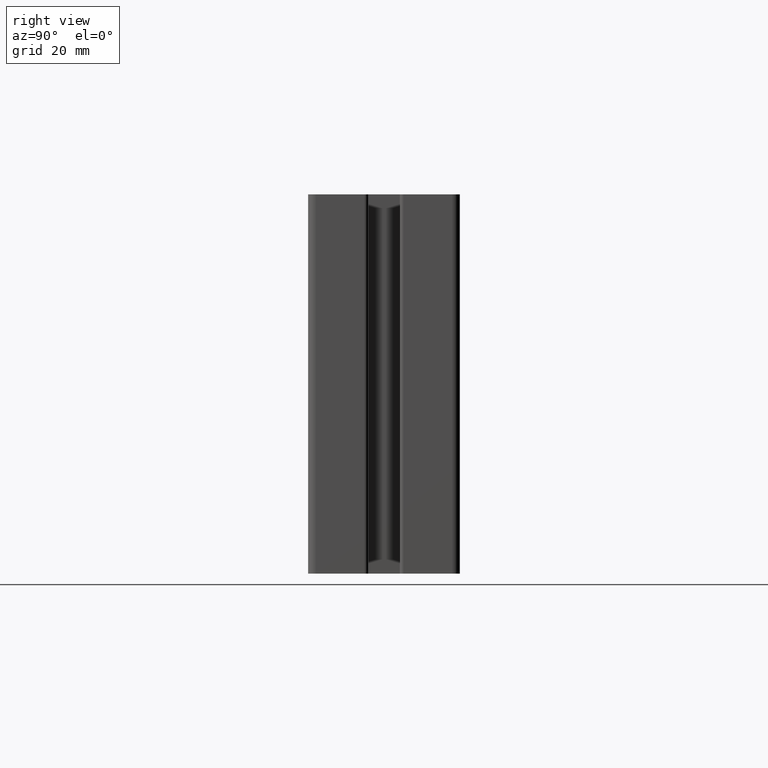
[diagram: clean part render]
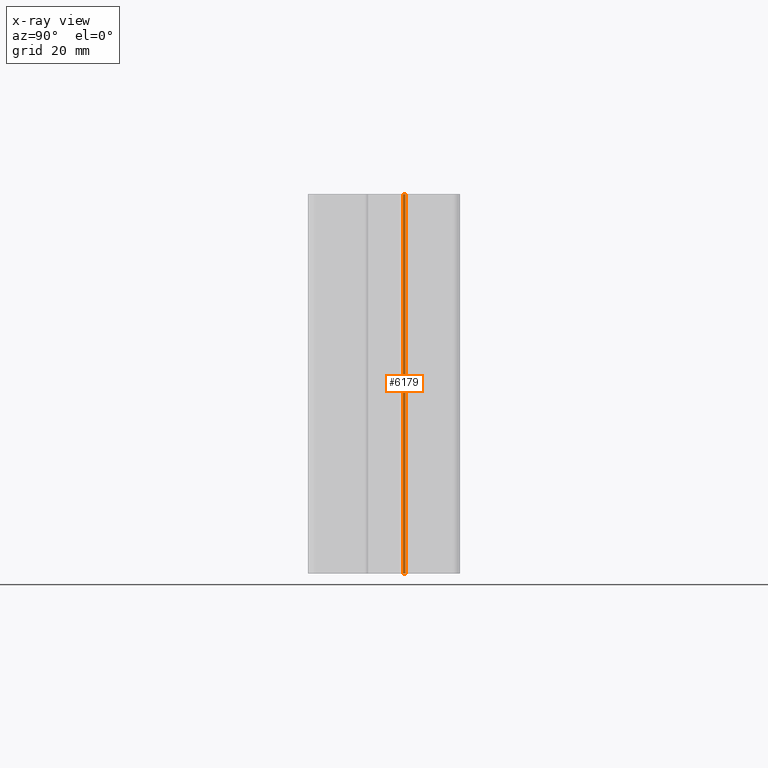
[diagram: x-ray — body ghosted, one internal face saturated and labeled with its STEP entity id]
A machine part, right view, then the same camera in x-ray: the body is ghosted and one INTERNAL B-rep face — a face not visible from any outside direction — is saturated and labeled: STEP entity #6179.
In plain terms, the highlighted cylindrical surface (edge-blend (fillet) strip) has radius 1 mm, axis along (0, 0, 1).
Its self-contained STEP definition (entity closure, byte-faithful):
#237=FACE_OUTER_BOUND('',#559,.T.);
#559=EDGE_LOOP('',(#4177,#4178,#4179,#4180));
#936=LINE('',#9163,#1580);
#938=LINE('',#9169,#1582);
#1580=VECTOR('',#7248,100.);
#1582=VECTOR('',#7254,100.);
#2203=CIRCLE('',#6526,1.);
#2204=CIRCLE('',#6527,1.);
#2537=VERTEX_POINT('',#9160);
#2538=VERTEX_POINT('',#9162);
#2539=VERTEX_POINT('',#9166);
#2540=VERTEX_POINT('',#9168);
#3198=EDGE_CURVE('',#2537,#2538,#936,.T.);
#3200=EDGE_CURVE('',#2539,#2537,#2203,.T.);
#3201=EDGE_CURVE('',#2539,#2540,#938,.T.);
#3202=EDGE_CURVE('',#2538,#2540,#2204,.T.);
#4177=ORIENTED_EDGE('',*,*,#3200,.F.);
#4178=ORIENTED_EDGE('',*,*,#3201,.T.);
#4179=ORIENTED_EDGE('',*,*,#3202,.F.);
#4180=ORIENTED_EDGE('',*,*,#3198,.F.);
#6012=CYLINDRICAL_SURFACE('',#6525,1.);
#6179=ADVANCED_FACE('',(#237),#6012,.F.);
#6525=AXIS2_PLACEMENT_3D('',#9165,#7250,#7251);
#6526=AXIS2_PLACEMENT_3D('',#9167,#7252,#7253);
#6527=AXIS2_PLACEMENT_3D('',#9170,#7255,#7256);
#7248=DIRECTION('',(0.,0.,1.));
#7250=DIRECTION('center_axis',(0.,0.,1.));
#7251=DIRECTION('ref_axis',(-0.707106781186546,0.707106781186549,0.));
#7252=DIRECTION('center_axis',(0.,0.,1.));
#7253=DIRECTION('ref_axis',(-0.707106781186546,0.707106781186549,0.));
#7254=DIRECTION('',(0.,0.,1.));
#7255=DIRECTION('center_axis',(0.,0.,-1.));
#7256=DIRECTION('ref_axis',(-0.707106781186546,0.707106781186549,0.));
#9160=CARTESIAN_POINT('',(-53.5,5.0077864376269,0.));
#9162=CARTESIAN_POINT('',(-53.5,5.0077864376269,100.));
#9163=CARTESIAN_POINT('',(-53.5,5.0077864376269,0.));
#9165=CARTESIAN_POINT('Origin',(-52.5,5.0077864376269,0.));
#9166=CARTESIAN_POINT('',(-53.2071067811865,5.71489321881345,0.));
#9167=CARTESIAN_POINT('Origin',(-52.5,5.0077864376269,0.));
#9168=CARTESIAN_POINT('',(-53.2071067811865,5.71489321881345,100.));
#9169=CARTESIAN_POINT('',(-53.2071067811865,5.71489321881345,0.));
#9170=CARTESIAN_POINT('Origin',(-52.5,5.0077864376269,100.));